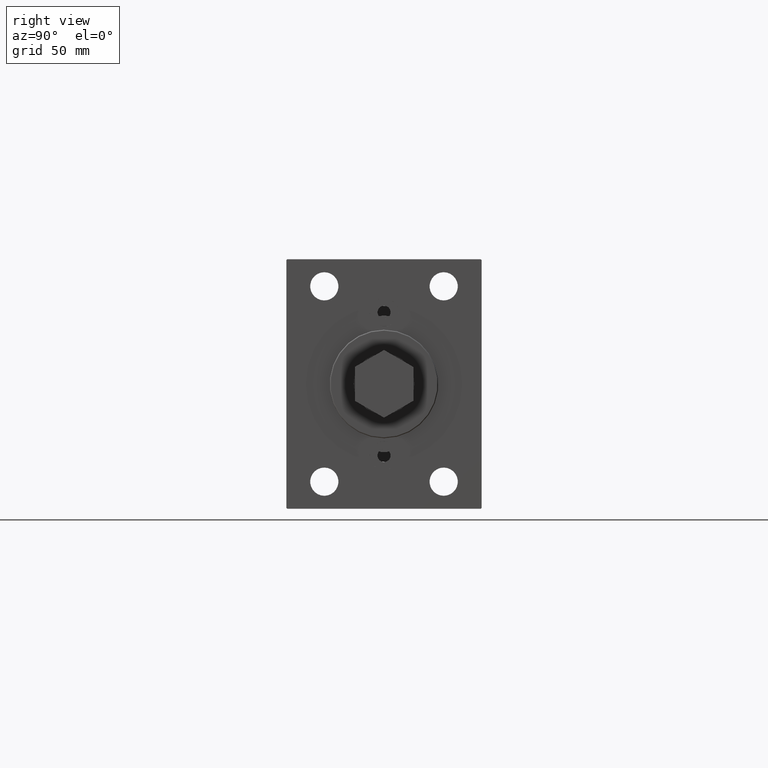
[diagram: clean part render]
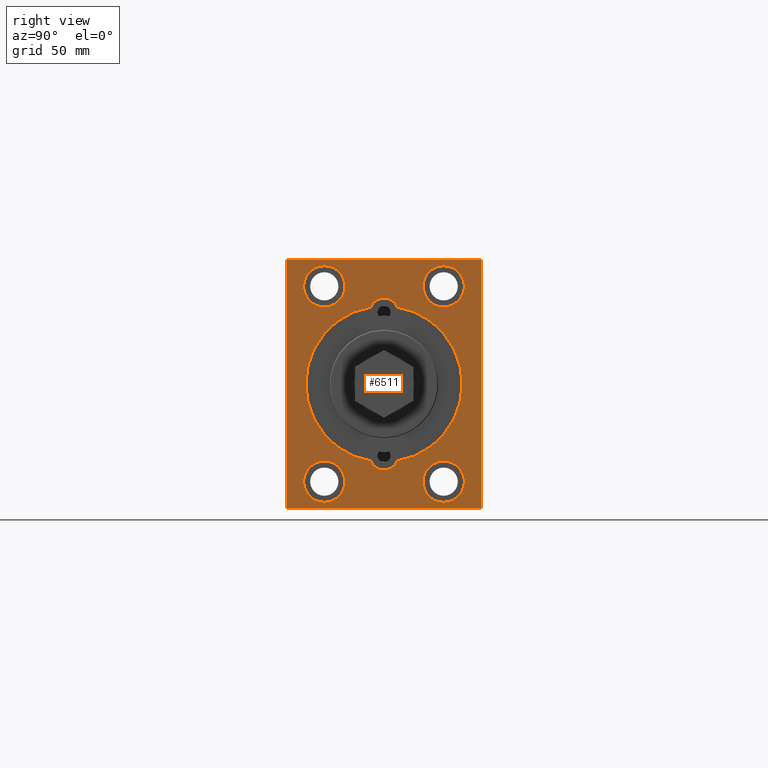
[diagram: same view with one face highlighted and labeled with its STEP entity id]
A machine part, right view. The second image highlights one B-rep face of the part: STEP entity #6511.
In plain terms, the highlighted planar face has unit normal (1, 0, 0).
Its self-contained STEP definition (entity closure, byte-faithful):
#376 = FACE_BOUND ( 'NONE', #42565, .T. ) ;
#648 = ORIENTED_EDGE ( 'NONE', *, *, #26212, .T. ) ;
#1205 = DIRECTION ( 'NONE',  ( 0.000000000000000000, 0.000000000000000000, 1.000000000000000000 ) ) ;
#1279 = CIRCLE ( 'NONE', #15041, 9.500000000000001776 ) ;
#1395 = AXIS2_PLACEMENT_3D ( 'NONE', #45583, #20104, #23908 ) ;
#1398 = AXIS2_PLACEMENT_3D ( 'NONE', #15665, #37365, #44027 ) ;
#1447 = AXIS2_PLACEMENT_3D ( 'NONE', #41095, #40636, #43965 ) ;
#1451 = DIRECTION ( 'NONE',  ( 0.000000000000000000, 0.000000000000000000, 1.000000000000000000 ) ) ;
#1600 = ORIENTED_EDGE ( 'NONE', *, *, #31783, .T. ) ;
#2324 = CARTESIAN_POINT ( 'NONE',  ( 119.7000000000000028, -27.50000000000000000, -45.00000000000000000 ) ) ;
#2529 = ORIENTED_EDGE ( 'NONE', *, *, #25253, .T. ) ;
#2694 = CARTESIAN_POINT ( 'NONE',  ( 119.7000000000000028, -45.00000000000000000, 57.00000000000001421 ) ) ;
#2883 = EDGE_CURVE ( 'NONE', #12328, #16380, #28042, .T. ) ;
#2933 = AXIS2_PLACEMENT_3D ( 'NONE', #31071, #27493, #20341 ) ;
#3268 = ORIENTED_EDGE ( 'NONE', *, *, #37573, .T. ) ;
#3721 = CARTESIAN_POINT ( 'NONE',  ( 119.7000000000000028, -44.50000000000000000, 57.49999999999998579 ) ) ;
#3796 = ORIENTED_EDGE ( 'NONE', *, *, #2883, .F. ) ;
#3923 = DIRECTION ( 'NONE',  ( 1.000000000000000000, 0.000000000000000000, -0.000000000000000000 ) ) ;
#3958 = FACE_BOUND ( 'NONE', #42368, .T. ) ;
#5675 = DIRECTION ( 'NONE',  ( -1.000000000000000000, -0.000000000000000000, -0.000000000000000000 ) ) ;
#5708 = CIRCLE ( 'NONE', #45998, 6.580000000000002736 ) ;
#5741 = EDGE_CURVE ( 'NONE', #7953, #36838, #20329, .T. ) ;
#5814 = EDGE_CURVE ( 'NONE', #16380, #25127, #14355, .T. ) ;
#5892 = VERTEX_POINT ( 'NONE', #2694 ) ;
#5983 = AXIS2_PLACEMENT_3D ( 'NONE', #37453, #34336, #1451 ) ;
#6511 = ADVANCED_FACE ( 'NONE', ( #3958, #18495, #33026, #376, #25851, #44659 ), #22294, .T. ) ;
#6653 = EDGE_CURVE ( 'NONE', #20796, #21119, #18193, .T. ) ;
#7203 = CARTESIAN_POINT ( 'NONE',  ( 119.7000000000000028, -44.50000000000002842, -57.50000000000001421 ) ) ;
#7606 = ORIENTED_EDGE ( 'NONE', *, *, #24947, .T. ) ;
#7684 = DIRECTION ( 'NONE',  ( -1.000000000000000000, -0.000000000000000000, -0.000000000000000000 ) ) ;
#7953 = VERTEX_POINT ( 'NONE', #7203 ) ;
#8154 = DIRECTION ( 'NONE',  ( -1.000000000000000000, -0.000000000000000000, -0.000000000000000000 ) ) ;
#8442 = CIRCLE ( 'NONE', #44208, 9.500000000000001776 ) ;
#8507 = DIRECTION ( 'NONE',  ( -0.000000000000000000, -0.7071067811865474617, 0.7071067811865474617 ) ) ;
#8661 = VERTEX_POINT ( 'NONE', #8667 ) ;
#8667 = CARTESIAN_POINT ( 'NONE',  ( 119.7000000000000028, 27.50000000000000000, 54.50000000000000000 ) ) ;
#9293 = CARTESIAN_POINT ( 'NONE',  ( 119.7000000000000028, -27.50000000000000000, -54.50000000000000000 ) ) ;
#9765 = CARTESIAN_POINT ( 'NONE',  ( 119.7000000000000028, 27.50000000000000000, -54.50000000000000000 ) ) ;
#9977 = CARTESIAN_POINT ( 'NONE',  ( 119.7000000000000028, -4.041334437186266200E-15, 33.00000000000000000 ) ) ;
#10191 = CARTESIAN_POINT ( 'NONE',  ( 119.7000000000000028, 45.00000000000000000, -57.50000000000001421 ) ) ;
#10910 = VERTEX_POINT ( 'NONE', #40233 ) ;
#12328 = VERTEX_POINT ( 'NONE', #27924 ) ;
#12432 = LINE ( 'NONE', #42423, #28008 ) ;
#12490 = DIRECTION ( 'NONE',  ( 0.000000000000000000, 1.000000000000000000, 0.000000000000000000 ) ) ;
#12494 = EDGE_CURVE ( 'NONE', #36223, #20544, #29018, .T. ) ;
#12760 = ORIENTED_EDGE ( 'NONE', *, *, #44714, .F. ) ;
#13288 = CIRCLE ( 'NONE', #45247, 6.580000000000002736 ) ;
#13815 = LINE ( 'NONE', #14533, #22945 ) ;
#13825 = EDGE_CURVE ( 'NONE', #17790, #7953, #13815, .T. ) ;
#14106 = CARTESIAN_POINT ( 'NONE',  ( 119.7000000000000028, -27.50000000000000000, 35.50000000000000000 ) ) ;
#14253 = VECTOR ( 'NONE', #23466, 999.9999999999998863 ) ;
#14355 = CIRCLE ( 'NONE', #1395, 6.579999999999999183 ) ;
#14375 = DIRECTION ( 'NONE',  ( 0.000000000000000000, 0.000000000000000000, 1.000000000000000000 ) ) ;
#14533 = CARTESIAN_POINT ( 'NONE',  ( 119.7000000000000028, -51.00000000000001421, -51.00000000000001421 ) ) ;
#14948 = EDGE_CURVE ( 'NONE', #18083, #40808, #20434, .T. ) ;
#15041 = AXIS2_PLACEMENT_3D ( 'NONE', #35734, #39081, #24990 ) ;
#15353 = AXIS2_PLACEMENT_3D ( 'NONE', #9977, #32136, #36185 ) ;
#15665 = CARTESIAN_POINT ( 'NONE',  ( 119.7000000000000028, 0.000000000000000000, 0.000000000000000000 ) ) ;
#15855 = LINE ( 'NONE', #37561, #14253 ) ;
#16380 = VERTEX_POINT ( 'NONE', #30708 ) ;
#16861 = CARTESIAN_POINT ( 'NONE',  ( 119.7000000000000028, 44.99999999999998579, 57.50000000000000000 ) ) ;
#17620 = ORIENTED_EDGE ( 'NONE', *, *, #24504, .T. ) ;
#17623 = CIRCLE ( 'NONE', #23691, 9.500000000000001776 ) ;
#17790 = VERTEX_POINT ( 'NONE', #42098 ) ;
#18083 = VERTEX_POINT ( 'NONE', #46240 ) ;
#18157 = VERTEX_POINT ( 'NONE', #24326 ) ;
#18193 = CIRCLE ( 'NONE', #2933, 9.500000000000001776 ) ;
#18495 = FACE_BOUND ( 'NONE', #34734, .T. ) ;
#18748 = EDGE_CURVE ( 'NONE', #25127, #24219, #26001, .T. ) ;
#18825 = EDGE_LOOP ( 'NONE', ( #3268, #7606 ) ) ;
#20104 = DIRECTION ( 'NONE',  ( 1.000000000000000000, 0.000000000000000000, 0.000000000000000000 ) ) ;
#20300 = CIRCLE ( 'NONE', #27165, 9.500000000000001776 ) ;
#20329 = LINE ( 'NONE', #31533, #40200 ) ;
#20341 = DIRECTION ( 'NONE',  ( 0.000000000000000000, 0.000000000000000000, 1.000000000000000000 ) ) ;
#20434 = LINE ( 'NONE', #16861, #38969 ) ;
#20544 = VERTEX_POINT ( 'NONE', #14106 ) ;
#20796 = VERTEX_POINT ( 'NONE', #9765 ) ;
#20816 = VERTEX_POINT ( 'NONE', #27855 ) ;
#21119 = VERTEX_POINT ( 'NONE', #27753 ) ;
#21520 = DIRECTION ( 'NONE',  ( -1.000000000000000000, -0.000000000000000000, -0.000000000000000000 ) ) ;
#22056 = ORIENTED_EDGE ( 'NONE', *, *, #5741, .T. ) ;
#22209 = DIRECTION ( 'NONE',  ( 0.000000000000000000, 0.000000000000000000, 1.000000000000000000 ) ) ;
#22294 = PLANE ( 'NONE',  #1447 ) ;
#22945 = VECTOR ( 'NONE', #43353, 1000.000000000000114 ) ;
#23070 = EDGE_CURVE ( 'NONE', #18157, #10910, #13288, .T. ) ;
#23129 = EDGE_CURVE ( 'NONE', #10910, #12328, #5708, .T. ) ;
#23246 = CARTESIAN_POINT ( 'NONE',  ( 119.7000000000000028, 51.00000000000000000, 51.00000000000000000 ) ) ;
#23466 = DIRECTION ( 'NONE',  ( -0.000000000000000000, 0.7071067811865574537, 0.7071067811865376918 ) ) ;
#23528 = CARTESIAN_POINT ( 'NONE',  ( 119.7000000000000028, 27.50000000000000000, -45.00000000000000000 ) ) ;
#23691 = AXIS2_PLACEMENT_3D ( 'NONE', #35352, #21520, #14375 ) ;
#23908 = DIRECTION ( 'NONE',  ( 0.000000000000000000, 0.000000000000000000, -1.000000000000000000 ) ) ;
#24068 = VERTEX_POINT ( 'NONE', #9293 ) ;
#24078 = CARTESIAN_POINT ( 'NONE',  ( 119.7000000000000028, -45.00000000000000000, 57.49999999999998579 ) ) ;
#24219 = VERTEX_POINT ( 'NONE', #36670 ) ;
#24220 = ORIENTED_EDGE ( 'NONE', *, *, #18748, .F. ) ;
#24234 = DIRECTION ( 'NONE',  ( 0.000000000000000000, 0.000000000000000000, 1.000000000000000000 ) ) ;
#24326 = CARTESIAN_POINT ( 'NONE',  ( 119.7000000000000028, -6.094606328253050265, -35.48035757575757287 ) ) ;
#24504 = EDGE_CURVE ( 'NONE', #20816, #37119, #42808, .T. ) ;
#24691 = DIRECTION ( 'NONE',  ( 0.000000000000000000, -1.206764157201257045E-16, 1.000000000000000000 ) ) ;
#24713 = ORIENTED_EDGE ( 'NONE', *, *, #38938, .T. ) ;
#24947 = EDGE_CURVE ( 'NONE', #24068, #30201, #20300, .T. ) ;
#24990 = DIRECTION ( 'NONE',  ( 0.000000000000000000, 0.000000000000000000, 1.000000000000000000 ) ) ;
#25127 = VERTEX_POINT ( 'NONE', #46440 ) ;
#25168 = ORIENTED_EDGE ( 'NONE', *, *, #12494, .T. ) ;
#25253 = EDGE_CURVE ( 'NONE', #8661, #29215, #1279, .T. ) ;
#25783 = EDGE_CURVE ( 'NONE', #36838, #20816, #15855, .T. ) ;
#25851 = FACE_BOUND ( 'NONE', #30431, .T. ) ;
#26001 = CIRCLE ( 'NONE', #15353, 6.579999999999999183 ) ;
#26212 = EDGE_CURVE ( 'NONE', #21119, #20796, #34035, .T. ) ;
#26282 = CARTESIAN_POINT ( 'NONE',  ( 119.7000000000000028, -27.50000000000000000, 54.50000000000000000 ) ) ;
#26520 = CIRCLE ( 'NONE', #5983, 9.500000000000001776 ) ;
#26587 = CARTESIAN_POINT ( 'NONE',  ( 119.7000000000000028, -27.50000000000000000, -35.50000000000000000 ) ) ;
#27165 = AXIS2_PLACEMENT_3D ( 'NONE', #40775, #7684, #1205 ) ;
#27493 = DIRECTION ( 'NONE',  ( -1.000000000000000000, -0.000000000000000000, -0.000000000000000000 ) ) ;
#27577 = ORIENTED_EDGE ( 'NONE', *, *, #14948, .T. ) ;
#27753 = CARTESIAN_POINT ( 'NONE',  ( 119.7000000000000028, 27.50000000000000000, -35.50000000000000000 ) ) ;
#27776 = EDGE_CURVE ( 'NONE', #5892, #17790, #30774, .T. ) ;
#27855 = CARTESIAN_POINT ( 'NONE',  ( 119.7000000000000028, 45.00000000000000000, -57.00000000000001421 ) ) ;
#27924 = CARTESIAN_POINT ( 'NONE',  ( 119.7000000000000028, 6.094606328253041383, -35.48035757575757287 ) ) ;
#28008 = VECTOR ( 'NONE', #45288, 1000.000000000000114 ) ;
#28042 = CIRCLE ( 'NONE', #1398, 36.00000000000000000 ) ;
#29018 = CIRCLE ( 'NONE', #38901, 9.500000000000001776 ) ;
#29056 = EDGE_LOOP ( 'NONE', ( #27577, #1600, #45180, #44271, #22056, #37385, #17620, #42586 ) ) ;
#29215 = VERTEX_POINT ( 'NONE', #45641 ) ;
#29641 = CARTESIAN_POINT ( 'NONE',  ( 119.7000000000000028, -4.041334437186266200E-15, -33.00000000000000000 ) ) ;
#29709 = LINE ( 'NONE', #23246, #38743 ) ;
#29716 = EDGE_CURVE ( 'NONE', #20544, #36223, #26520, .T. ) ;
#30201 = VERTEX_POINT ( 'NONE', #26587 ) ;
#30215 = EDGE_CURVE ( 'NONE', #37119, #18083, #29709, .T. ) ;
#30431 = EDGE_LOOP ( 'NONE', ( #25168, #33792 ) ) ;
#30692 = DIRECTION ( 'NONE',  ( 0.000000000000000000, 0.000000000000000000, 1.000000000000000000 ) ) ;
#30708 = CARTESIAN_POINT ( 'NONE',  ( 119.7000000000000028, 6.094606328253036942, 35.48035757575757287 ) ) ;
#30774 = LINE ( 'NONE', #24078, #32600 ) ;
#31071 = CARTESIAN_POINT ( 'NONE',  ( 119.7000000000000028, 27.50000000000000000, -45.00000000000000000 ) ) ;
#31186 = DIRECTION ( 'NONE',  ( 0.000000000000000000, 0.000000000000000000, -1.000000000000000000 ) ) ;
#31402 = DIRECTION ( 'NONE',  ( 0.000000000000000000, -1.000000000000000000, -1.541976423090495633E-16 ) ) ;
#31533 = CARTESIAN_POINT ( 'NONE',  ( 119.7000000000000028, -45.00000000000000000, -57.50000000000001421 ) ) ;
#31783 = EDGE_CURVE ( 'NONE', #40808, #5892, #12432, .T. ) ;
#32136 = DIRECTION ( 'NONE',  ( 1.000000000000000000, 0.000000000000000000, 0.000000000000000000 ) ) ;
#32532 = AXIS2_PLACEMENT_3D ( 'NONE', #23528, #5675, #30692 ) ;
#32600 = VECTOR ( 'NONE', #41732, 1000.000000000000000 ) ;
#33026 = FACE_BOUND ( 'NONE', #18825, .T. ) ;
#33792 = ORIENTED_EDGE ( 'NONE', *, *, #29716, .T. ) ;
#34006 = VECTOR ( 'NONE', #24691, 1000.000000000000000 ) ;
#34035 = CIRCLE ( 'NONE', #32532, 9.500000000000001776 ) ;
#34336 = DIRECTION ( 'NONE',  ( -1.000000000000000000, -0.000000000000000000, -0.000000000000000000 ) ) ;
#34403 = AXIS2_PLACEMENT_3D ( 'NONE', #41668, #42611, #31186 ) ;
#34734 = EDGE_LOOP ( 'NONE', ( #648, #44731 ) ) ;
#35352 = CARTESIAN_POINT ( 'NONE',  ( 119.7000000000000028, 27.50000000000000000, 45.00000000000000000 ) ) ;
#35560 = CARTESIAN_POINT ( 'NONE',  ( 119.7000000000000028, -27.50000000000000000, 45.00000000000000000 ) ) ;
#35734 = CARTESIAN_POINT ( 'NONE',  ( 119.7000000000000028, 27.50000000000000000, 45.00000000000000000 ) ) ;
#36185 = DIRECTION ( 'NONE',  ( 0.000000000000000000, 0.000000000000000000, -1.000000000000000000 ) ) ;
#36223 = VERTEX_POINT ( 'NONE', #26282 ) ;
#36670 = CARTESIAN_POINT ( 'NONE',  ( 119.7000000000000028, -6.094606328253044936, 35.48035757575757287 ) ) ;
#36838 = VERTEX_POINT ( 'NONE', #38539 ) ;
#37119 = VERTEX_POINT ( 'NONE', #43991 ) ;
#37365 = DIRECTION ( 'NONE',  ( 1.000000000000000000, 0.000000000000000000, 0.000000000000000000 ) ) ;
#37385 = ORIENTED_EDGE ( 'NONE', *, *, #25783, .T. ) ;
#37453 = CARTESIAN_POINT ( 'NONE',  ( 119.7000000000000028, -27.50000000000000000, 45.00000000000000000 ) ) ;
#37504 = DIRECTION ( 'NONE',  ( 0.000000000000000000, 0.000000000000000000, 1.000000000000000000 ) ) ;
#37561 = CARTESIAN_POINT ( 'NONE',  ( 119.7000000000000028, 50.99999999999938893, -51.00000000000080291 ) ) ;
#37566 = ORIENTED_EDGE ( 'NONE', *, *, #5814, .F. ) ;
#37573 = EDGE_CURVE ( 'NONE', #30201, #24068, #8442, .T. ) ;
#37726 = CARTESIAN_POINT ( 'NONE',  ( 119.7000000000000028, -4.041334437186266200E-15, -33.00000000000000000 ) ) ;
#38196 = DIRECTION ( 'NONE',  ( 0.000000000000000000, 0.000000000000000000, 1.000000000000000000 ) ) ;
#38460 = ORIENTED_EDGE ( 'NONE', *, *, #23070, .F. ) ;
#38539 = CARTESIAN_POINT ( 'NONE',  ( 119.7000000000000028, 44.49999999999995737, -57.50000000000001421 ) ) ;
#38659 = DIRECTION ( 'NONE',  ( 1.000000000000000000, 0.000000000000000000, -0.000000000000000000 ) ) ;
#38743 = VECTOR ( 'NONE', #8507, 1000.000000000000114 ) ;
#38901 = AXIS2_PLACEMENT_3D ( 'NONE', #35560, #8154, #22209 ) ;
#38938 = EDGE_CURVE ( 'NONE', #29215, #8661, #17623, .T. ) ;
#38969 = VECTOR ( 'NONE', #31402, 1000.000000000000000 ) ;
#38974 = CIRCLE ( 'NONE', #34403, 36.00000000000000000 ) ;
#39081 = DIRECTION ( 'NONE',  ( -1.000000000000000000, -0.000000000000000000, -0.000000000000000000 ) ) ;
#40200 = VECTOR ( 'NONE', #12490, 1000.000000000000000 ) ;
#40233 = CARTESIAN_POINT ( 'NONE',  ( 119.7000000000000028, -4.041334437186266200E-15, -39.58000000000000540 ) ) ;
#40636 = DIRECTION ( 'NONE',  ( 1.000000000000000000, 0.000000000000000000, 0.000000000000000000 ) ) ;
#40775 = CARTESIAN_POINT ( 'NONE',  ( 119.7000000000000028, -27.50000000000000000, -45.00000000000000000 ) ) ;
#40808 = VERTEX_POINT ( 'NONE', #3721 ) ;
#41095 = CARTESIAN_POINT ( 'NONE',  ( 119.7000000000000028, 0.000000000000000000, 0.000000000000000000 ) ) ;
#41668 = CARTESIAN_POINT ( 'NONE',  ( 119.7000000000000028, 0.000000000000000000, 0.000000000000000000 ) ) ;
#41732 = DIRECTION ( 'NONE',  ( 0.000000000000000000, 0.000000000000000000, -1.000000000000000000 ) ) ;
#42098 = CARTESIAN_POINT ( 'NONE',  ( 119.7000000000000028, -45.00000000000000000, -57.00000000000004263 ) ) ;
#42353 = DIRECTION ( 'NONE',  ( -1.000000000000000000, -0.000000000000000000, -0.000000000000000000 ) ) ;
#42368 = EDGE_LOOP ( 'NONE', ( #37566, #3796, #46538, #38460, #12760, #24220 ) ) ;
#42423 = CARTESIAN_POINT ( 'NONE',  ( 119.7000000000000028, -51.00000000000000711, 51.00000000000000711 ) ) ;
#42565 = EDGE_LOOP ( 'NONE', ( #2529, #24713 ) ) ;
#42586 = ORIENTED_EDGE ( 'NONE', *, *, #30215, .T. ) ;
#42611 = DIRECTION ( 'NONE',  ( 1.000000000000000000, 0.000000000000000000, 0.000000000000000000 ) ) ;
#42808 = LINE ( 'NONE', #10191, #34006 ) ;
#43353 = DIRECTION ( 'NONE',  ( -0.000000000000000000, 0.7071067811865474617, -0.7071067811865474617 ) ) ;
#43965 = DIRECTION ( 'NONE',  ( 0.000000000000000000, 0.000000000000000000, -1.000000000000000000 ) ) ;
#43991 = CARTESIAN_POINT ( 'NONE',  ( 119.7000000000000028, 44.99999999999998579, 57.00000000000000000 ) ) ;
#44027 = DIRECTION ( 'NONE',  ( 0.000000000000000000, 0.000000000000000000, -1.000000000000000000 ) ) ;
#44208 = AXIS2_PLACEMENT_3D ( 'NONE', #2324, #42353, #24234 ) ;
#44271 = ORIENTED_EDGE ( 'NONE', *, *, #13825, .T. ) ;
#44659 = FACE_OUTER_BOUND ( 'NONE', #29056, .T. ) ;
#44714 = EDGE_CURVE ( 'NONE', #24219, #18157, #38974, .T. ) ;
#44731 = ORIENTED_EDGE ( 'NONE', *, *, #6653, .T. ) ;
#45180 = ORIENTED_EDGE ( 'NONE', *, *, #27776, .T. ) ;
#45247 = AXIS2_PLACEMENT_3D ( 'NONE', #29641, #3923, #37504 ) ;
#45288 = DIRECTION ( 'NONE',  ( 0.000000000000000000, -0.7071067811865474617, -0.7071067811865474617 ) ) ;
#45583 = CARTESIAN_POINT ( 'NONE',  ( 119.7000000000000028, -4.041334437186266200E-15, 33.00000000000000000 ) ) ;
#45641 = CARTESIAN_POINT ( 'NONE',  ( 119.7000000000000028, 27.50000000000000000, 35.50000000000000000 ) ) ;
#45998 = AXIS2_PLACEMENT_3D ( 'NONE', #37726, #38659, #38196 ) ;
#46240 = CARTESIAN_POINT ( 'NONE',  ( 119.7000000000000028, 44.50000000000001421, 57.50000000000000000 ) ) ;
#46440 = CARTESIAN_POINT ( 'NONE',  ( 119.7000000000000028, -3.235516843347307552E-15, 39.57999999999999829 ) ) ;
#46538 = ORIENTED_EDGE ( 'NONE', *, *, #23129, .F. ) ;